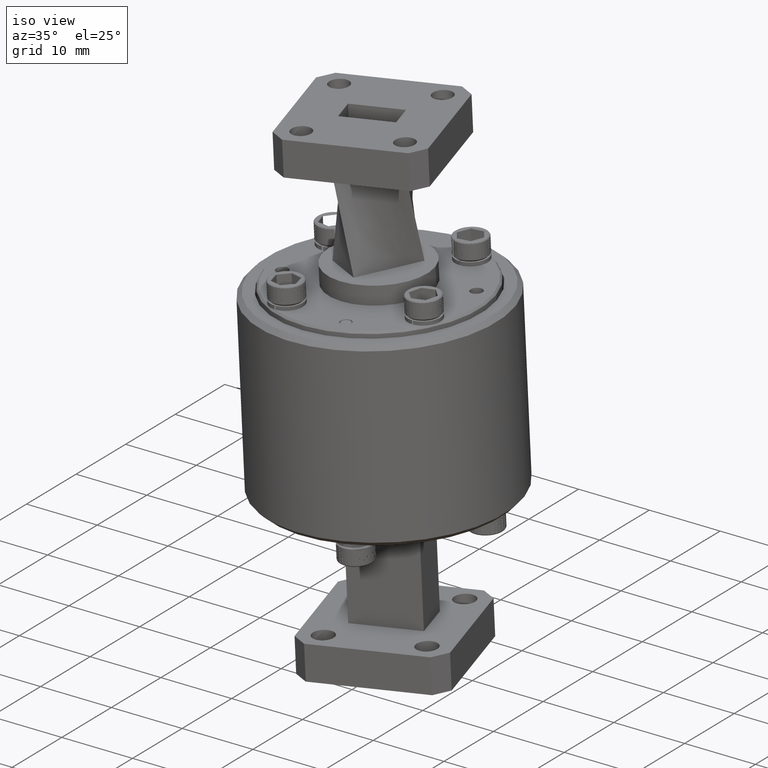
[diagram: clean part render]
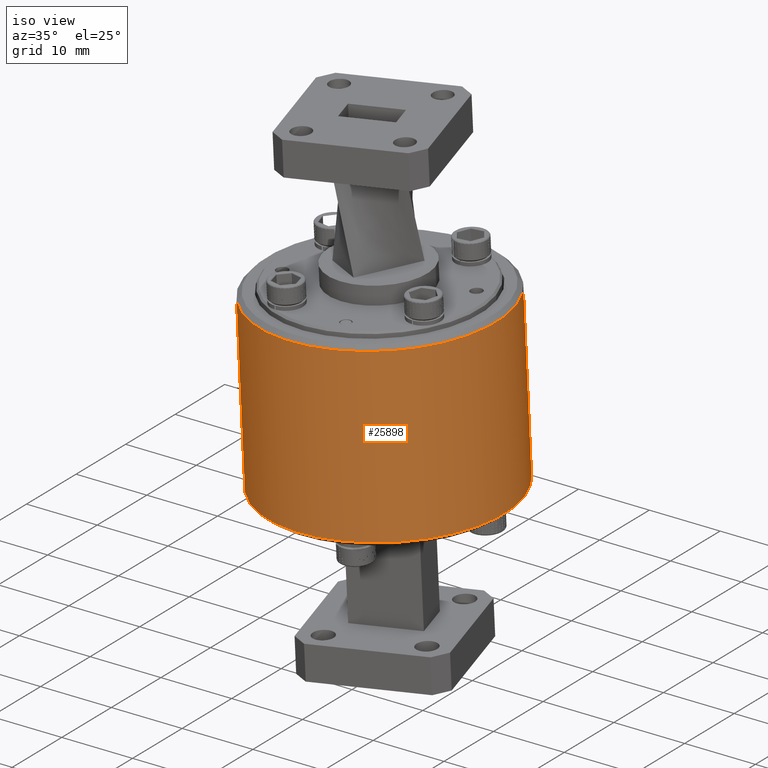
[diagram: same view with one face highlighted and labeled with its STEP entity id]
A machine part, iso view. The second image highlights one B-rep face of the part: STEP entity #25898.
In plain terms, the highlighted cylindrical surface (partial cylindrical patch) has radius 16.637 mm, axis along (-0.0356, -0.0182, 0.9992).
Its self-contained STEP definition (entity closure, byte-faithful):
#889 = DIRECTION ( 'NONE',  ( 0.03562249074304803300, 0.01820857446431868900, -0.9991994225224706300 ) ) ;
#1328 = LINE ( 'NONE', #19893, #30192 ) ;
#2392 = EDGE_CURVE ( 'NONE', #10060, #36962, #2527, .T. ) ;
#2527 = CIRCLE ( 'NONE', #37884, 0.6549999999999998000 ) ;
#3295 = AXIS2_PLACEMENT_3D ( 'NONE', #15719, #21805, #13107 ) ;
#7141 = DIRECTION ( 'NONE',  ( 0.7761129981655692200, 0.6293780999679398100, 0.03913848948537648100 ) ) ;
#7160 = CARTESIAN_POINT ( 'NONE',  ( -5.396150186565911600, -1.663714937277984000, -1.494604162918455700 ) ) ;
#7655 = DIRECTION ( 'NONE',  ( -0.7761129981655694500, -0.6293780999679399200, -0.03913848948537638300 ) ) ;
#8191 = DIRECTION ( 'NONE',  ( -0.03562249074304803300, -0.01820857446431868900, 0.9991994225224706300 ) ) ;
#9889 = CARTESIAN_POINT ( 'NONE',  ( -5.430347777679236800, -1.681195168763730100, -0.5353727172968832900 ) ) ;
#10060 = VERTEX_POINT ( 'NONE', #9889 ) ;
#11666 = VERTEX_POINT ( 'NONE', #32425 ) ;
#13025 = CARTESIAN_POINT ( 'NONE',  ( -5.903613638095782400, -2.075502378395376500, -1.545219859094438800 ) ) ;
#13107 = DIRECTION ( 'NONE',  ( -0.7761129981655696700, -0.6293780999679393600, -0.03913848948537650100 ) ) ;
#15719 = CARTESIAN_POINT ( 'NONE',  ( -5.904504200364358200, -2.075957592756984700, -1.520239873531377100 ) ) ;
#16485 = VERTEX_POINT ( 'NONE', #7160 ) ;
#19893 = CARTESIAN_POINT ( 'NONE',  ( -6.411967651894230800, -2.487745033874377000, -1.570855569707360500 ) ) ;
#20525 = AXIS2_PLACEMENT_3D ( 'NONE', #13025, #34048, #7141 ) ;
#20742 = FACE_OUTER_BOUND ( 'NONE', #24411, .T. ) ;
#21166 = ORIENTED_EDGE ( 'NONE', *, *, #38217, .T. ) ;
#21805 = DIRECTION ( 'NONE',  ( -0.03562249074304803300, -0.01820857446431868900, 0.9991994225224706300 ) ) ;
#22202 = EDGE_CURVE ( 'NONE', #11666, #36962, #1328, .T. ) ;
#23733 = VECTOR ( 'NONE', #24597, 39.37007874015748100 ) ;
#24411 = EDGE_LOOP ( 'NONE', ( #32329, #21166, #28129, #28431 ) ) ;
#24597 = DIRECTION ( 'NONE',  ( -0.03562249074304803300, -0.01820857446431868900, 0.9991994225224706300 ) ) ;
#25221 = CIRCLE ( 'NONE', #3295, 0.6549999999999995800 ) ;
#25898 = ADVANCED_FACE ( 'NONE', ( #20742 ), #32824, .T. ) ;
#26441 = CARTESIAN_POINT ( 'NONE',  ( -5.938701791477684300, -2.093437824242730700, -0.5610084279098047600 ) ) ;
#27558 = CARTESIAN_POINT ( 'NONE',  ( -5.395259624297335000, -1.663259722916375900, -1.519584148481517300 ) ) ;
#28129 = ORIENTED_EDGE ( 'NONE', *, *, #30257, .T. ) ;
#28431 = ORIENTED_EDGE ( 'NONE', *, *, #2392, .T. ) ;
#30192 = VECTOR ( 'NONE', #8191, 39.37007874015748100 ) ;
#30257 = EDGE_CURVE ( 'NONE', #16485, #10060, #31152, .T. ) ;
#31152 = LINE ( 'NONE', #27558, #23733 ) ;
#32329 = ORIENTED_EDGE ( 'NONE', *, *, #22202, .F. ) ;
#32425 = CARTESIAN_POINT ( 'NONE',  ( -6.412858214162806500, -2.488200248235985100, -1.545875584144298800 ) ) ;
#32824 = CYLINDRICAL_SURFACE ( 'NONE', #20525, 0.6549999999999999200 ) ;
#34048 = DIRECTION ( 'NONE',  ( -0.03562249074304803300, -0.01820857446431868900, 0.9991994225224706300 ) ) ;
#36891 = CARTESIAN_POINT ( 'NONE',  ( -6.447055805276131800, -2.505680479721731100, -0.5866441385227263400 ) ) ;
#36962 = VERTEX_POINT ( 'NONE', #36891 ) ;
#37884 = AXIS2_PLACEMENT_3D ( 'NONE', #26441, #889, #7655 ) ;
#38217 = EDGE_CURVE ( 'NONE', #11666, #16485, #25221, .T. ) ;